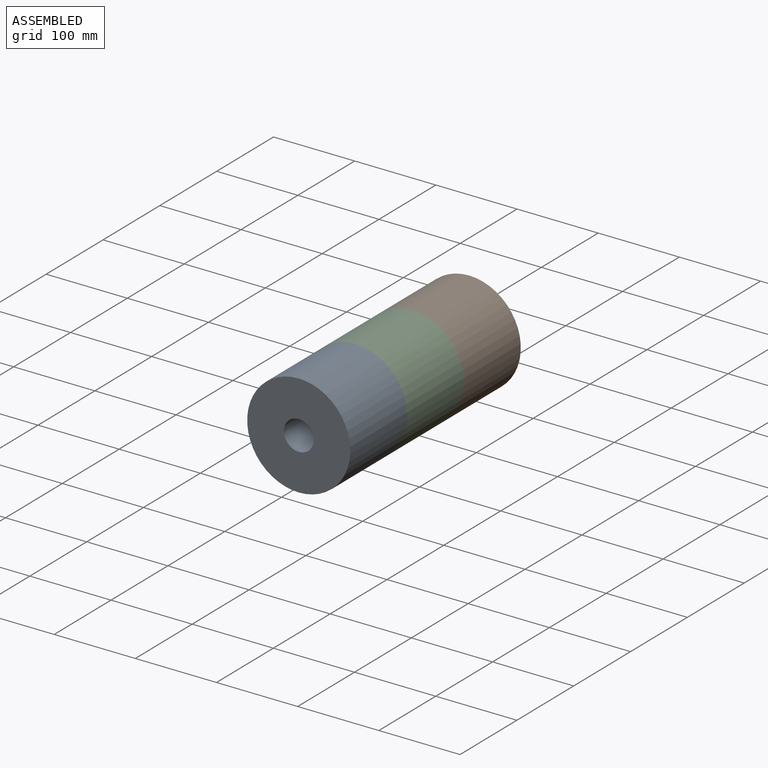
[diagram: assembled view]
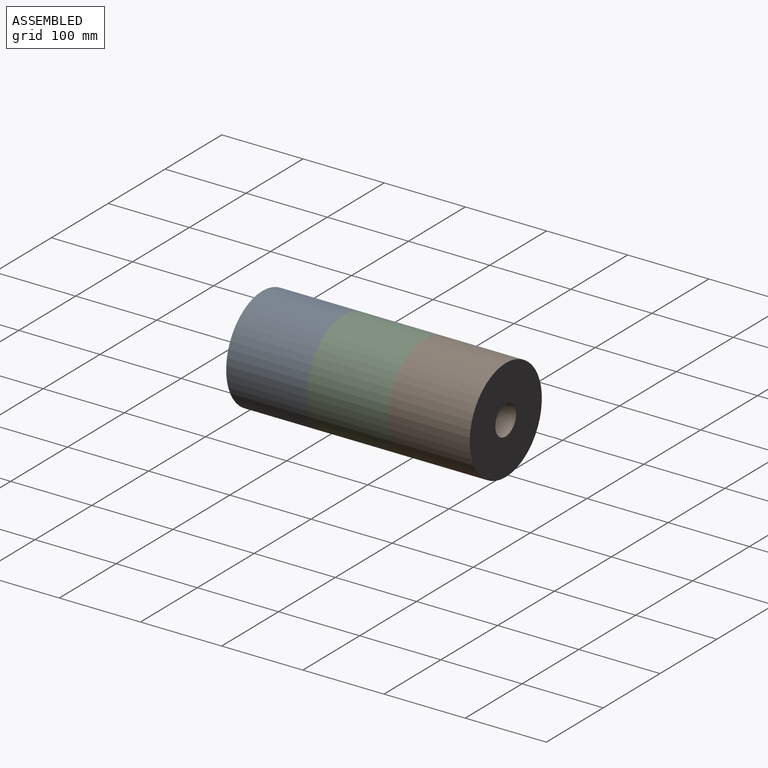
[diagram: assembled view, second angle]
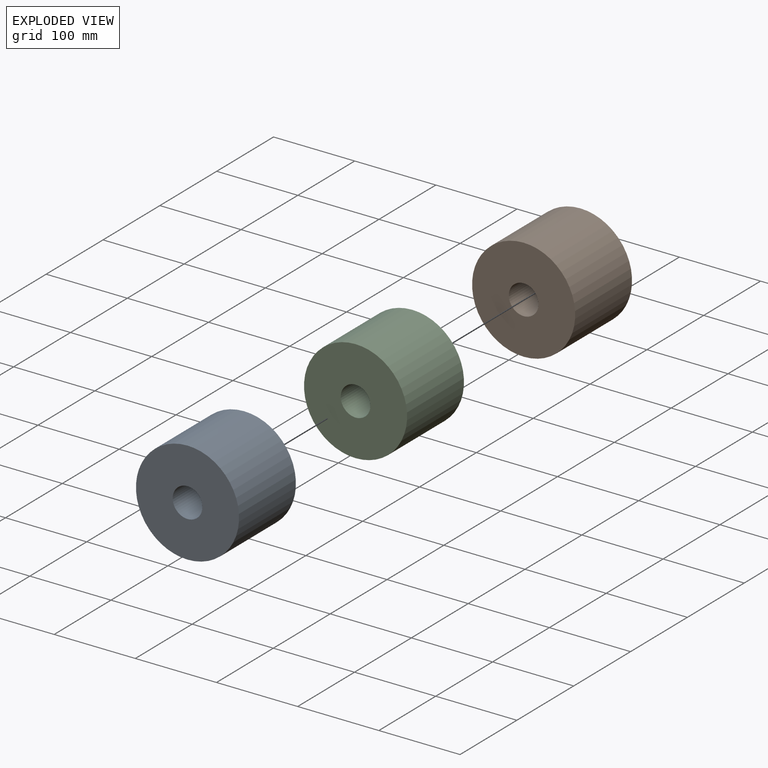
[diagram: exploded view]
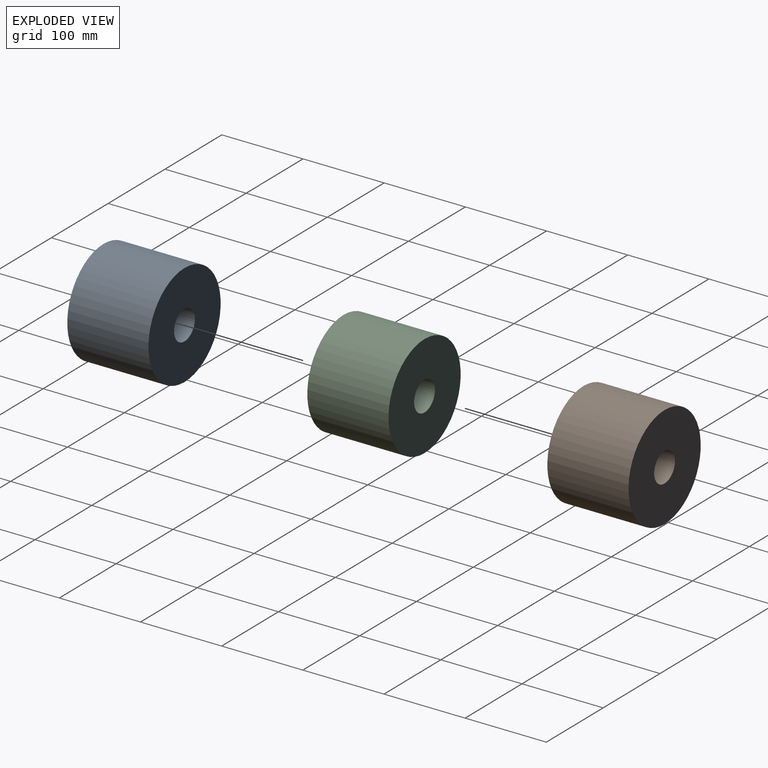
[diagram: exploded view, second angle]
ASSEMBLY  parts=3 mates=2
PART A: 4 faces, bbox 127x100x127 mm
  f0: cylinder r=63.5mm len=127mm, axis (0,1,0), area 39898.2mm2, adj f1,f2
  f1: plane 127x127mm, normal (0,-1,0), area 11614.6mm2, adj f0,f3
  f2: plane 127x127mm, normal (0,1,0), area 11614.6mm2, adj f0,f3
  f3: cylinder r=18.31mm len=100mm, axis (0,-1,0), area 11503.7mm2, adj f1,f2
PART B: same geometry as A
PART C: same geometry as A
PLACE A t=(-85.71,-90.05,14.16)mm
PLACE B t=(-85.71,109.95,14.16)mm
PLACE C t=(-85.71,9.95,14.16)mm
MATE planar B.f0 <-> C.f0  axis (0,-1,0) through (-85.71,9.95,14.16)mm
MATE planar A.f0 <-> C.f0  axis (0,1,0) through (-85.71,-90.05,14.16)mm
